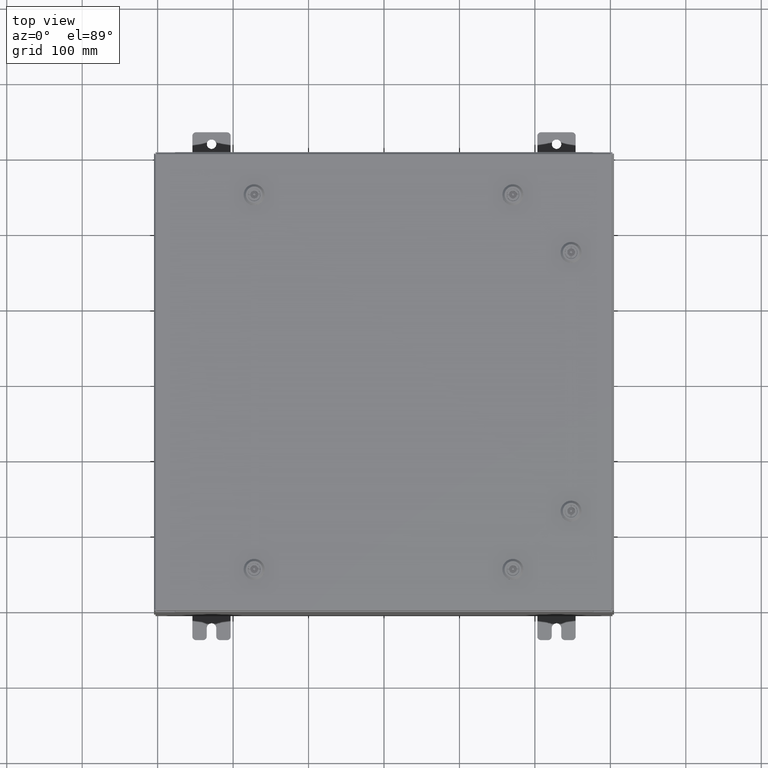
[diagram: clean part render]
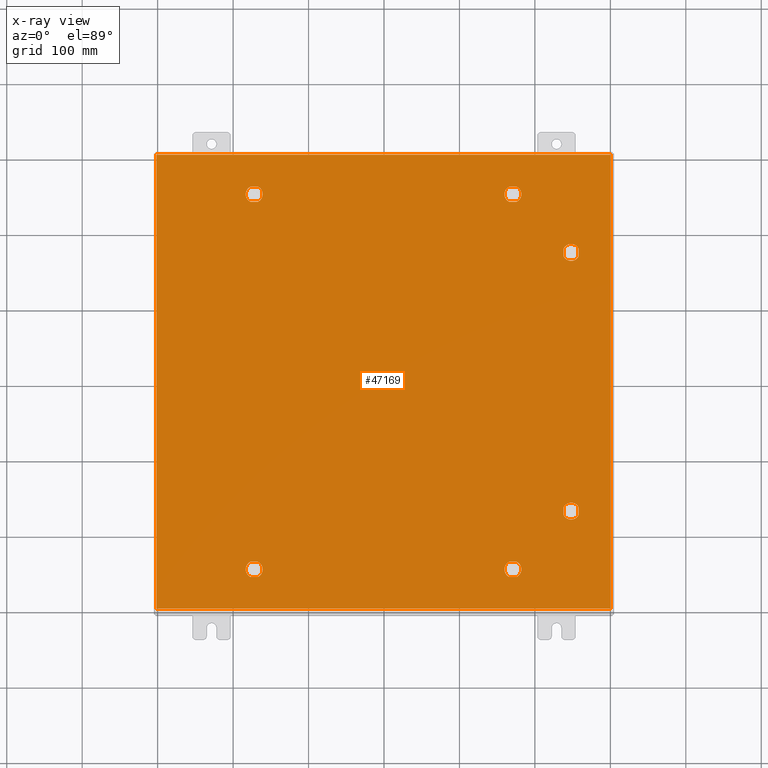
[diagram: x-ray — body ghosted, one internal face saturated and labeled with its STEP entity id]
A machine part, top view, then the same camera in x-ray: the body is ghosted and one INTERNAL B-rep face — a face not visible from any outside direction — is saturated and labeled: STEP entity #47169.
In plain terms, the highlighted planar face has unit normal (0, 0, -1).
Its self-contained STEP definition (entity closure, byte-faithful):
#73 = EDGE_CURVE ( 'NONE', #8258, #60451, #23996, .T. ) ;
#235 = DIRECTION ( 'NONE',  ( -1.000000000000000000, 0.0000000000000000000, -0.0000000000000000000 ) ) ;
#331 = VERTEX_POINT ( 'NONE', #50920 ) ;
#404 = CARTESIAN_POINT ( 'NONE',  ( -6.749999999999984900, -9.787799999999993600, -0.07470000000000003000 ) ) ;
#431 = DIRECTION ( 'NONE',  ( -0.0000000000000000000, -0.0000000000000000000, 1.000000000000000000 ) ) ;
#490 = DIRECTION ( 'NONE',  ( -0.0000000000000000000, -0.0000000000000000000, 1.000000000000000000 ) ) ;
#496 = DIRECTION ( 'NONE',  ( -0.0000000000000000000, -0.0000000000000000000, 1.000000000000000000 ) ) ;
#915 = CARTESIAN_POINT ( 'NONE',  ( 9.787800000000007800, -6.750000000000015100, -0.07470000000000003000 ) ) ;
#1107 = AXIS2_PLACEMENT_3D ( 'NONE', #55015, #25635, #59926 ) ;
#1223 = CARTESIAN_POINT ( 'NONE',  ( -11.84980000000000000, 11.84980000000000000, -0.07470000000000129300 ) ) ;
#1527 = LINE ( 'NONE', #8495, #49056 ) ;
#2327 = CIRCLE ( 'NONE', #60938, 0.4424999999999983400 ) ;
#2421 = AXIS2_PLACEMENT_3D ( 'NONE', #14886, #49198, #19850 ) ;
#2440 = DIRECTION ( 'NONE',  ( -0.0000000000000000000, -0.0000000000000000000, 1.000000000000000000 ) ) ;
#2488 = CARTESIAN_POINT ( 'NONE',  ( 11.84980000000000000, -11.84980000000000000, -0.07470000000000019700 ) ) ;
#2742 = DIRECTION ( 'NONE',  ( -1.000000000000000000, -2.469467112916857400E-015, 0.0000000000000000000 ) ) ;
#2827 = DIRECTION ( 'NONE',  ( -0.0000000000000000000, -0.0000000000000000000, 1.000000000000000000 ) ) ;
#3197 = EDGE_CURVE ( 'NONE', #12007, #8258, #53082, .T. ) ;
#3439 = ORIENTED_EDGE ( 'NONE', *, *, #54023, .T. ) ;
#3995 = AXIS2_PLACEMENT_3D ( 'NONE', #29876, #490, #34780 ) ;
#4157 = EDGE_LOOP ( 'NONE', ( #45603, #44064, #52142, #62874, #54500 ) ) ;
#4209 = CARTESIAN_POINT ( 'NONE',  ( 9.392800000000015400, 6.949452375267905600, -0.07470000000000003000 ) ) ;
#4681 = AXIS2_PLACEMENT_3D ( 'NONE', #31814, #2440, #36718 ) ;
#5023 = AXIS2_PLACEMENT_3D ( 'NONE', #43326, #13947, #48253 ) ;
#5266 = EDGE_CURVE ( 'NONE', #44303, #12361, #2327, .T. ) ;
#5337 = DIRECTION ( 'NONE',  ( -1.000000000000000000, 2.469467112916857400E-015, 0.0000000000000000000 ) ) ;
#5833 = DIRECTION ( 'NONE',  ( -1.000000000000000000, 0.0000000000000000000, 0.0000000000000000000 ) ) ;
#5905 = ORIENTED_EDGE ( 'NONE', *, *, #19765, .T. ) ;
#5947 = EDGE_CURVE ( 'NONE', #57953, #27558, #36036, .T. ) ;
#6494 = DIRECTION ( 'NONE',  ( -1.000000000000000000, -2.739348669069625400E-015, 0.0000000000000000000 ) ) ;
#6537 = CARTESIAN_POINT ( 'NONE',  ( -6.949452375267869200, 9.392799999999995800, -0.07470000000000003000 ) ) ;
#6552 = CIRCLE ( 'NONE', #38175, 0.4424999999999972800 ) ;
#6900 = ORIENTED_EDGE ( 'NONE', *, *, #5266, .T. ) ;
#6933 = CARTESIAN_POINT ( 'NONE',  ( -11.84979999999999500, -11.84980000000000000, -0.07470000000000000300 ) ) ;
#6953 = AXIS2_PLACEMENT_3D ( 'NONE', #915, #35203, #5833 ) ;
#6964 = LINE ( 'NONE', #48313, #44563 ) ;
#7021 = DIRECTION ( 'NONE',  ( -1.000000000000000000, 2.739348669069610000E-015, 0.0000000000000000000 ) ) ;
#7412 = CARTESIAN_POINT ( 'NONE',  ( -6.749999999999984900, -9.787799999999993600, -0.07470000000000003000 ) ) ;
#7886 = VERTEX_POINT ( 'NONE', #44357 ) ;
#7951 = EDGE_CURVE ( 'NONE', #62416, #53925, #31308, .T. ) ;
#8003 = VERTEX_POINT ( 'NONE', #39225 ) ;
#8050 = CIRCLE ( 'NONE', #58455, 0.4424999999999972800 ) ;
#8258 = VERTEX_POINT ( 'NONE', #15828 ) ;
#8495 = CARTESIAN_POINT ( 'NONE',  ( -11.84979999999999500, -11.84980000000000000, -0.07470000000000019700 ) ) ;
#8703 = FACE_BOUND ( 'NONE', #43476, .T. ) ;
#8920 = ORIENTED_EDGE ( 'NONE', *, *, #32089, .T. ) ;
#9126 = DIRECTION ( 'NONE',  ( -8.218046007208762600E-015, -1.000000000000000000, 0.0000000000000000000 ) ) ;
#9312 = DIRECTION ( 'NONE',  ( 1.095739467627835200E-014, -1.000000000000000000, 0.0000000000000000000 ) ) ;
#9453 = AXIS2_PLACEMENT_3D ( 'NONE', #29819, #431, #34729 ) ;
#9504 = CARTESIAN_POINT ( 'NONE',  ( -6.949452375267865600, 10.18279999999999000, -0.07470000000000003000 ) ) ;
#10007 = LINE ( 'NONE', #19998, #37610 ) ;
#10033 = CARTESIAN_POINT ( 'NONE',  ( -6.550547624732099700, 9.392799999999995800, -0.07470000000000003000 ) ) ;
#10446 = CARTESIAN_POINT ( 'NONE',  ( 6.550547624732091700, -10.18279999999998400, -0.07470000000000003000 ) ) ;
#11271 = CARTESIAN_POINT ( 'NONE',  ( 6.949452375267864700, 10.18279999999999000, -0.07470000000000003000 ) ) ;
#11900 = VECTOR ( 'NONE', #12828, 39.37007874015748100 ) ;
#12007 = VERTEX_POINT ( 'NONE', #40836 ) ;
#12136 = CARTESIAN_POINT ( 'NONE',  ( -6.949452375267865600, -10.18279999999999100, -0.07470000000000003000 ) ) ;
#12337 = DIRECTION ( 'NONE',  ( -1.000000000000000000, 0.0000000000000000000, 0.0000000000000000000 ) ) ;
#12361 = VERTEX_POINT ( 'NONE', #34216 ) ;
#12828 = DIRECTION ( 'NONE',  ( -5.478697338139235800E-015, 1.000000000000000000, 0.0000000000000000000 ) ) ;
#12898 = VECTOR ( 'NONE', #29563, 39.37007874015748100 ) ;
#13011 = CARTESIAN_POINT ( 'NONE',  ( 10.18280000000000700, -6.550547624732132600, -0.07470000000000003000 ) ) ;
#13170 = CARTESIAN_POINT ( 'NONE',  ( 9.392800000000011800, 6.550547624732132600, -0.07470000000000003000 ) ) ;
#13467 = CARTESIAN_POINT ( 'NONE',  ( 6.949452375267867400, 9.392799999999995800, -0.07470000000000003000 ) ) ;
#13862 = VECTOR ( 'NONE', #44843, 39.37007874015748100 ) ;
#13947 = DIRECTION ( 'NONE',  ( -0.0000000000000000000, -0.0000000000000000000, 1.000000000000000000 ) ) ;
#14422 = DIRECTION ( 'NONE',  ( -0.0000000000000000000, -0.0000000000000000000, 1.000000000000000000 ) ) ;
#14796 = VERTEX_POINT ( 'NONE', #59349 ) ;
#14886 = CARTESIAN_POINT ( 'NONE',  ( -6.749999999999984900, 9.787799999999991800, -0.07470000000000003000 ) ) ;
#15490 = EDGE_CURVE ( 'NONE', #26814, #44303, #10007, .T. ) ;
#15540 = CARTESIAN_POINT ( 'NONE',  ( 6.550547624732099700, -9.392799999999997600, -0.07470000000000000300 ) ) ;
#15626 = ORIENTED_EDGE ( 'NONE', *, *, #3197, .F. ) ;
#15828 = CARTESIAN_POINT ( 'NONE',  ( -11.84979999999999800, 11.84980000000000000, -0.07470000000000000300 ) ) ;
#16407 = CARTESIAN_POINT ( 'NONE',  ( 6.749999999999983100, 9.787799999999993600, -0.07470000000000003000 ) ) ;
#16667 = ORIENTED_EDGE ( 'NONE', *, *, #59861, .T. ) ;
#16919 = CARTESIAN_POINT ( 'NONE',  ( 11.84980000000000200, 11.84980000000000000, -0.07469999999999910000 ) ) ;
#16934 = CIRCLE ( 'NONE', #1107, 0.4424999999999972800 ) ;
#17087 = ORIENTED_EDGE ( 'NONE', *, *, #54115, .T. ) ;
#17174 = VECTOR ( 'NONE', #6494, 39.37007874015748100 ) ;
#17442 = EDGE_CURVE ( 'NONE', #19958, #58185, #63579, .T. ) ;
#17524 = CARTESIAN_POINT ( 'NONE',  ( -6.550547624732099700, -9.392799999999999400, -0.07470000000000003000 ) ) ;
#17603 = ORIENTED_EDGE ( 'NONE', *, *, #62453, .T. ) ;
#18252 = CIRCLE ( 'NONE', #21702, 0.4424999999999983400 ) ;
#18267 = EDGE_LOOP ( 'NONE', ( #42672, #61710, #49824, #16667, #37463 ) ) ;
#18411 = ORIENTED_EDGE ( 'NONE', *, *, #23059, .T. ) ;
#18666 = CARTESIAN_POINT ( 'NONE',  ( 10.18280000000000600, -6.949452375267901200, -0.07470000000000003000 ) ) ;
#19765 = EDGE_CURVE ( 'NONE', #48237, #59594, #27503, .T. ) ;
#19850 = DIRECTION ( 'NONE',  ( -1.000000000000000000, 2.469467112916857400E-015, 0.0000000000000000000 ) ) ;
#19902 = DIRECTION ( 'NONE',  ( -1.000000000000000000, -0.0000000000000000000, -0.0000000000000000000 ) ) ;
#19908 = CARTESIAN_POINT ( 'NONE',  ( -6.307499999999987700, -9.787799999999993600, -0.07470000000000003000 ) ) ;
#19958 = VERTEX_POINT ( 'NONE', #11271 ) ;
#19998 = CARTESIAN_POINT ( 'NONE',  ( 10.18280000000000600, -6.949452375267901200, -0.07470000000000003000 ) ) ;
#20744 = EDGE_LOOP ( 'NONE', ( #6900, #30906, #17087, #54940 ) ) ;
#20788 = CIRCLE ( 'NONE', #3995, 0.4424999999999972800 ) ;
#20843 = CARTESIAN_POINT ( 'NONE',  ( -6.749999999999984900, -9.787799999999993600, -0.07470000000000003000 ) ) ;
#21072 = CARTESIAN_POINT ( 'NONE',  ( -6.307499999999987700, 9.787799999999991800, -0.07470000000000003000 ) ) ;
#21082 = VECTOR ( 'NONE', #51557, 39.37007874015748100 ) ;
#21209 = CARTESIAN_POINT ( 'NONE',  ( 6.550547624732099700, 9.392799999999997600, -0.07470000000000003000 ) ) ;
#21326 = DIRECTION ( 'NONE',  ( -1.000000000000000000, 0.0000000000000000000, 0.0000000000000000000 ) ) ;
#21409 = VECTOR ( 'NONE', #25750, 39.37007874015748100 ) ;
#21687 = FACE_BOUND ( 'NONE', #18267, .T. ) ;
#21702 = AXIS2_PLACEMENT_3D ( 'NONE', #404, #34707, #5337 ) ;
#22220 = AXIS2_PLACEMENT_3D ( 'NONE', #16407, #50718, #21326 ) ;
#22645 = ORIENTED_EDGE ( 'NONE', *, *, #28743, .T. ) ;
#23059 = EDGE_CURVE ( 'NONE', #52282, #14796, #6552, .T. ) ;
#23225 = VERTEX_POINT ( 'NONE', #15540 ) ;
#23324 = VERTEX_POINT ( 'NONE', #21072 ) ;
#23613 = EDGE_CURVE ( 'NONE', #59594, #23324, #34231, .T. ) ;
#23693 = ORIENTED_EDGE ( 'NONE', *, *, #34537, .T. ) ;
#23884 = VECTOR ( 'NONE', #28817, 39.37007874015748100 ) ;
#23968 = VERTEX_POINT ( 'NONE', #60119 ) ;
#23996 = LINE ( 'NONE', #1223, #61587 ) ;
#24120 = DIRECTION ( 'NONE',  ( -0.0000000000000000000, -0.0000000000000000000, 1.000000000000000000 ) ) ;
#24440 = CIRCLE ( 'NONE', #2421, 0.4424999999999983400 ) ;
#24567 = DIRECTION ( 'NONE',  ( -0.0000000000000000000, -0.0000000000000000000, 1.000000000000000000 ) ) ;
#24630 = EDGE_CURVE ( 'NONE', #7886, #12007, #47198, .T. ) ;
#24646 = CARTESIAN_POINT ( 'NONE',  ( 0.0000000000000000000, 0.0000000000000000000, -0.07470000000000000300 ) ) ;
#24682 = CIRCLE ( 'NONE', #6953, 0.4424999999999972800 ) ;
#24801 = FACE_BOUND ( 'NONE', #4157, .T. ) ;
#24805 = VECTOR ( 'NONE', #44722, 39.37007874015748100 ) ;
#25347 = VERTEX_POINT ( 'NONE', #42034 ) ;
#25635 = DIRECTION ( 'NONE',  ( -0.0000000000000000000, -0.0000000000000000000, 1.000000000000000000 ) ) ;
#25750 = DIRECTION ( 'NONE',  ( 1.000000000000000000, 1.643609201441752500E-014, 0.0000000000000000000 ) ) ;
#25785 = DIRECTION ( 'NONE',  ( -1.000000000000000000, 2.469467112916863300E-015, 0.0000000000000000000 ) ) ;
#25888 = VERTEX_POINT ( 'NONE', #56332 ) ;
#26027 = VERTEX_POINT ( 'NONE', #13170 ) ;
#26806 = EDGE_CURVE ( 'NONE', #50202, #331, #57911, .T. ) ;
#26814 = VERTEX_POINT ( 'NONE', #18666 ) ;
#27503 = LINE ( 'NONE', #10033, #12898 ) ;
#27558 = VERTEX_POINT ( 'NONE', #56527 ) ;
#27650 = DIRECTION ( 'NONE',  ( 0.0000000000000000000, -1.000000000000000000, 0.0000000000000000000 ) ) ;
#27920 = LINE ( 'NONE', #10446, #24805 ) ;
#27977 = ORIENTED_EDGE ( 'NONE', *, *, #28041, .T. ) ;
#28011 = CARTESIAN_POINT ( 'NONE',  ( 6.550547624732091700, 10.18279999999998400, -0.07470000000000000300 ) ) ;
#28041 = EDGE_CURVE ( 'NONE', #56062, #23225, #30262, .T. ) ;
#28143 = AXIS2_PLACEMENT_3D ( 'NONE', #7412, #41685, #12337 ) ;
#28590 = CARTESIAN_POINT ( 'NONE',  ( -6.550547624732099700, 9.392799999999995800, -0.07470000000000000300 ) ) ;
#28743 = EDGE_CURVE ( 'NONE', #8003, #35982, #27920, .T. ) ;
#28817 = DIRECTION ( 'NONE',  ( -1.000000000000000000, 1.643609201441752500E-014, 0.0000000000000000000 ) ) ;
#29486 = EDGE_LOOP ( 'NONE', ( #3439, #17603, #18411, #41210 ) ) ;
#29563 = DIRECTION ( 'NONE',  ( 1.000000000000000000, 2.739348669069610000E-015, 0.0000000000000000000 ) ) ;
#29819 = CARTESIAN_POINT ( 'NONE',  ( -6.749999999999984900, 9.787799999999991800, -0.07470000000000003000 ) ) ;
#29876 = CARTESIAN_POINT ( 'NONE',  ( 6.749999999999983100, 9.787799999999993600, -0.07470000000000003000 ) ) ;
#29882 = CARTESIAN_POINT ( 'NONE',  ( 9.787800000000007800, 6.750000000000015100, -0.07470000000000003000 ) ) ;
#30262 = LINE ( 'NONE', #35878, #17174 ) ;
#30488 = EDGE_CURVE ( 'NONE', #27558, #35829, #45430, .T. ) ;
#30906 = ORIENTED_EDGE ( 'NONE', *, *, #55324, .T. ) ;
#31197 = AXIS2_PLACEMENT_3D ( 'NONE', #43789, #14422, #48714 ) ;
#31308 = LINE ( 'NONE', #32349, #45856 ) ;
#31814 = CARTESIAN_POINT ( 'NONE',  ( 6.749999999999983100, -9.787799999999993600, -0.07470000000000003000 ) ) ;
#32089 = EDGE_CURVE ( 'NONE', #23324, #23968, #16934, .T. ) ;
#32209 = ORIENTED_EDGE ( 'NONE', *, *, #53873, .T. ) ;
#32349 = CARTESIAN_POINT ( 'NONE',  ( -6.550547624732099700, -9.392799999999997600, -0.07470000000000003000 ) ) ;
#32973 = DIRECTION ( 'NONE',  ( 1.000000000000000000, -0.0000000000000000000, -0.0000000000000000000 ) ) ;
#33704 = EDGE_CURVE ( 'NONE', #60451, #7886, #1527, .T. ) ;
#34216 = CARTESIAN_POINT ( 'NONE',  ( 9.392800000000011800, -6.550547624732132600, -0.07470000000000003000 ) ) ;
#34231 = CIRCLE ( 'NONE', #9453, 0.4424999999999972800 ) ;
#34370 = ORIENTED_EDGE ( 'NONE', *, *, #47930, .T. ) ;
#34394 = CARTESIAN_POINT ( 'NONE',  ( -6.550547624732093500, -10.18279999999998400, -0.07470000000000003000 ) ) ;
#34537 = EDGE_CURVE ( 'NONE', #45215, #48237, #24440, .T. ) ;
#34707 = DIRECTION ( 'NONE',  ( -0.0000000000000000000, -0.0000000000000000000, 1.000000000000000000 ) ) ;
#34729 = DIRECTION ( 'NONE',  ( -1.000000000000000000, 2.469467112916863300E-015, 0.0000000000000000000 ) ) ;
#34780 = DIRECTION ( 'NONE',  ( -1.000000000000000000, -2.469467112916863300E-015, 0.0000000000000000000 ) ) ;
#34785 = DIRECTION ( 'NONE',  ( -1.000000000000000000, 0.0000000000000000000, 0.0000000000000000000 ) ) ;
#34796 = FACE_BOUND ( 'NONE', #20744, .T. ) ;
#35203 = DIRECTION ( 'NONE',  ( -0.0000000000000000000, -0.0000000000000000000, 1.000000000000000000 ) ) ;
#35345 = VERTEX_POINT ( 'NONE', #21209 ) ;
#35537 = CARTESIAN_POINT ( 'NONE',  ( 6.949452375267864700, -10.18279999999999000, -0.07470000000000003000 ) ) ;
#35787 = EDGE_CURVE ( 'NONE', #53925, #57953, #18252, .T. ) ;
#35829 = VERTEX_POINT ( 'NONE', #19908 ) ;
#35878 = CARTESIAN_POINT ( 'NONE',  ( 6.550547624732099700, -9.392799999999997600, -0.07470000000000003000 ) ) ;
#35982 = VERTEX_POINT ( 'NONE', #35537 ) ;
#36036 = LINE ( 'NONE', #34394, #21409 ) ;
#36346 = AXIS2_PLACEMENT_3D ( 'NONE', #53940, #24567, #58849 ) ;
#36718 = DIRECTION ( 'NONE',  ( -1.000000000000000000, -2.469467112916863300E-015, 0.0000000000000000000 ) ) ;
#36924 = LINE ( 'NONE', #43375, #23884 ) ;
#37463 = ORIENTED_EDGE ( 'NONE', *, *, #55547, .T. ) ;
#37610 = VECTOR ( 'NONE', #59202, 39.37007874015748100 ) ;
#37993 = LINE ( 'NONE', #47120, #11900 ) ;
#38122 = EDGE_CURVE ( 'NONE', #14796, #26027, #45231, .T. ) ;
#38175 = AXIS2_PLACEMENT_3D ( 'NONE', #53506, #24120, #58414 ) ;
#38818 = DIRECTION ( 'NONE',  ( 0.0000000000000000000, 0.0000000000000000000, -1.000000000000000000 ) ) ;
#38941 = ORIENTED_EDGE ( 'NONE', *, *, #24630, .F. ) ;
#39225 = CARTESIAN_POINT ( 'NONE',  ( 6.550547624732091700, -10.18279999999998400, -0.07470000000000003000 ) ) ;
#39276 = CIRCLE ( 'NONE', #47632, 0.4424999999999972800 ) ;
#39336 = CIRCLE ( 'NONE', #36346, 0.4424999999999972800 ) ;
#40836 = CARTESIAN_POINT ( 'NONE',  ( 11.84980000000000000, 11.84980000000000000, -0.07470000000000000300 ) ) ;
#41210 = ORIENTED_EDGE ( 'NONE', *, *, #38122, .T. ) ;
#41271 = ORIENTED_EDGE ( 'NONE', *, *, #23613, .T. ) ;
#41685 = DIRECTION ( 'NONE',  ( -0.0000000000000000000, -0.0000000000000000000, 1.000000000000000000 ) ) ;
#42034 = CARTESIAN_POINT ( 'NONE',  ( 7.192499999999980400, -9.787799999999993600, -0.07470000000000003000 ) ) ;
#42447 = CARTESIAN_POINT ( 'NONE',  ( 10.18280000000000600, 6.550547624732132600, -0.07470000000000003000 ) ) ;
#42672 = ORIENTED_EDGE ( 'NONE', *, *, #26806, .T. ) ;
#43326 = CARTESIAN_POINT ( 'NONE',  ( 6.749999999999983100, 9.787799999999993600, -0.07470000000000003000 ) ) ;
#43375 = CARTESIAN_POINT ( 'NONE',  ( -6.550547624732093500, 10.18279999999998300, -0.07470000000000003000 ) ) ;
#43476 = EDGE_LOOP ( 'NONE', ( #23693, #5905, #41271, #8920, #47727 ) ) ;
#43683 = VECTOR ( 'NONE', #9126, 39.37007874015748100 ) ;
#43789 = CARTESIAN_POINT ( 'NONE',  ( 6.749999999999983100, -9.787799999999993600, -0.07470000000000003000 ) ) ;
#43873 = CIRCLE ( 'NONE', #31197, 0.4424999999999972800 ) ;
#44064 = ORIENTED_EDGE ( 'NONE', *, *, #5947, .T. ) ;
#44303 = VERTEX_POINT ( 'NONE', #13011 ) ;
#44357 = CARTESIAN_POINT ( 'NONE',  ( 11.84980000000000000, -11.84980000000000000, -0.07470000000000000300 ) ) ;
#44563 = VECTOR ( 'NONE', #9312, 39.37007874015748100 ) ;
#44722 = DIRECTION ( 'NONE',  ( 1.000000000000000000, -1.095739467627835200E-014, 0.0000000000000000000 ) ) ;
#44772 = CARTESIAN_POINT ( 'NONE',  ( 6.550547624732091700, 10.18279999999998400, -0.07470000000000003000 ) ) ;
#44843 = DIRECTION ( 'NONE',  ( 1.000000000000000000, -2.739348669069625400E-015, 0.0000000000000000000 ) ) ;
#44981 = DIRECTION ( 'NONE',  ( -1.000000000000000000, -1.095739467627835200E-014, 0.0000000000000000000 ) ) ;
#45215 = VERTEX_POINT ( 'NONE', #9504 ) ;
#45231 = LINE ( 'NONE', #4209, #43683 ) ;
#45430 = CIRCLE ( 'NONE', #28143, 0.4424999999999972800 ) ;
#45603 = ORIENTED_EDGE ( 'NONE', *, *, #35787, .T. ) ;
#45611 = CIRCLE ( 'NONE', #4681, 0.4424999999999972800 ) ;
#45825 = EDGE_LOOP ( 'NONE', ( #38941, #59664, #47392, #15626 ) ) ;
#45856 = VECTOR ( 'NONE', #7021, 39.37007874015748100 ) ;
#46677 = CARTESIAN_POINT ( 'NONE',  ( 9.787800000000007800, -6.750000000000015100, -0.07470000000000003000 ) ) ;
#46768 = VERTEX_POINT ( 'NONE', #42447 ) ;
#47033 = CARTESIAN_POINT ( 'NONE',  ( 10.18280000000000200, 6.949452375267901200, -0.07470000000000000300 ) ) ;
#47120 = CARTESIAN_POINT ( 'NONE',  ( 10.18280000000000200, 6.949452375267901200, -0.07470000000000003000 ) ) ;
#47169 = ADVANCED_FACE ( 'NONE', ( #34796, #47831, #60845, #24801, #21687, #8703, #59300 ), #54018, .T. ) ;
#47198 = LINE ( 'NONE', #2488, #21082 ) ;
#47392 = ORIENTED_EDGE ( 'NONE', *, *, #73, .F. ) ;
#47632 = AXIS2_PLACEMENT_3D ( 'NONE', #29882, #496, #34785 ) ;
#47727 = ORIENTED_EDGE ( 'NONE', *, *, #49591, .T. ) ;
#47831 = FACE_BOUND ( 'NONE', #29486, .T. ) ;
#47930 = EDGE_CURVE ( 'NONE', #35982, #25347, #39336, .T. ) ;
#48143 = CIRCLE ( 'NONE', #22220, 0.4424999999999972800 ) ;
#48237 = VERTEX_POINT ( 'NONE', #6537 ) ;
#48253 = DIRECTION ( 'NONE',  ( -1.000000000000000000, 2.469467112916863300E-015, 0.0000000000000000000 ) ) ;
#48313 = CARTESIAN_POINT ( 'NONE',  ( 9.392800000000017100, -6.949452375267905600, -0.07470000000000003000 ) ) ;
#48661 = AXIS2_PLACEMENT_3D ( 'NONE', #24646, #38818, #235 ) ;
#48714 = DIRECTION ( 'NONE',  ( -1.000000000000000000, 0.0000000000000000000, 0.0000000000000000000 ) ) ;
#49056 = VECTOR ( 'NONE', #32973, 39.37007874015748100 ) ;
#49198 = DIRECTION ( 'NONE',  ( -0.0000000000000000000, -0.0000000000000000000, 1.000000000000000000 ) ) ;
#49591 = EDGE_CURVE ( 'NONE', #23968, #45215, #36924, .T. ) ;
#49722 = EDGE_CURVE ( 'NONE', #331, #19958, #20788, .T. ) ;
#49824 = ORIENTED_EDGE ( 'NONE', *, *, #17442, .T. ) ;
#50202 = VERTEX_POINT ( 'NONE', #13467 ) ;
#50718 = DIRECTION ( 'NONE',  ( -0.0000000000000000000, -0.0000000000000000000, 1.000000000000000000 ) ) ;
#50920 = CARTESIAN_POINT ( 'NONE',  ( 7.192499999999980400, 9.787799999999993600, -0.07470000000000003000 ) ) ;
#51452 = LINE ( 'NONE', #54704, #13862 ) ;
#51515 = VECTOR ( 'NONE', #19902, 39.37007874015748100 ) ;
#51557 = DIRECTION ( 'NONE',  ( 0.0000000000000000000, 1.000000000000000000, 0.0000000000000000000 ) ) ;
#52084 = VECTOR ( 'NONE', #44981, 39.37007874015748100 ) ;
#52142 = ORIENTED_EDGE ( 'NONE', *, *, #30488, .T. ) ;
#52282 = VERTEX_POINT ( 'NONE', #47033 ) ;
#53082 = LINE ( 'NONE', #16919, #51515 ) ;
#53506 = CARTESIAN_POINT ( 'NONE',  ( 9.787800000000007800, 6.750000000000015100, -0.07470000000000003000 ) ) ;
#53656 = CARTESIAN_POINT ( 'NONE',  ( -6.949452375267869200, -9.392799999999997600, -0.07470000000000003000 ) ) ;
#53873 = EDGE_CURVE ( 'NONE', #23225, #8003, #43873, .T. ) ;
#53925 = VERTEX_POINT ( 'NONE', #53656 ) ;
#53940 = CARTESIAN_POINT ( 'NONE',  ( 6.749999999999983100, -9.787799999999993600, -0.07470000000000003000 ) ) ;
#54018 = PLANE ( 'NONE',  #48661 ) ;
#54023 = EDGE_CURVE ( 'NONE', #26027, #46768, #39276, .T. ) ;
#54115 = EDGE_CURVE ( 'NONE', #25888, #26814, #24682, .T. ) ;
#54500 = ORIENTED_EDGE ( 'NONE', *, *, #7951, .T. ) ;
#54704 = CARTESIAN_POINT ( 'NONE',  ( 6.550547624732099700, 9.392799999999997600, -0.07470000000000003000 ) ) ;
#54940 = ORIENTED_EDGE ( 'NONE', *, *, #15490, .T. ) ;
#55015 = CARTESIAN_POINT ( 'NONE',  ( -6.749999999999984900, 9.787799999999991800, -0.07470000000000003000 ) ) ;
#55168 = DIRECTION ( 'NONE',  ( -0.0000000000000000000, -0.0000000000000000000, 1.000000000000000000 ) ) ;
#55324 = EDGE_CURVE ( 'NONE', #12361, #25888, #6964, .T. ) ;
#55547 = EDGE_CURVE ( 'NONE', #35345, #50202, #51452, .T. ) ;
#56062 = VERTEX_POINT ( 'NONE', #56932 ) ;
#56332 = CARTESIAN_POINT ( 'NONE',  ( 9.392800000000017100, -6.949452375267905600, -0.07470000000000000300 ) ) ;
#56347 = ORIENTED_EDGE ( 'NONE', *, *, #63105, .T. ) ;
#56527 = CARTESIAN_POINT ( 'NONE',  ( -6.550547624732093500, -10.18279999999998400, -0.07470000000000000300 ) ) ;
#56932 = CARTESIAN_POINT ( 'NONE',  ( 6.949452375267867400, -9.392799999999995800, -0.07470000000000003000 ) ) ;
#57911 = CIRCLE ( 'NONE', #5023, 0.4424999999999972800 ) ;
#57953 = VERTEX_POINT ( 'NONE', #12136 ) ;
#58185 = VERTEX_POINT ( 'NONE', #28011 ) ;
#58414 = DIRECTION ( 'NONE',  ( -1.000000000000000000, 0.0000000000000000000, 0.0000000000000000000 ) ) ;
#58455 = AXIS2_PLACEMENT_3D ( 'NONE', #20843, #55168, #25785 ) ;
#58849 = DIRECTION ( 'NONE',  ( -1.000000000000000000, 2.469467112916863300E-015, 0.0000000000000000000 ) ) ;
#59202 = DIRECTION ( 'NONE',  ( 5.478697338139235800E-015, 1.000000000000000000, 0.0000000000000000000 ) ) ;
#59300 = FACE_OUTER_BOUND ( 'NONE', #45825, .T. ) ;
#59349 = CARTESIAN_POINT ( 'NONE',  ( 9.392800000000015400, 6.949452375267905600, -0.07470000000000003000 ) ) ;
#59594 = VERTEX_POINT ( 'NONE', #28590 ) ;
#59664 = ORIENTED_EDGE ( 'NONE', *, *, #33704, .F. ) ;
#59861 = EDGE_CURVE ( 'NONE', #58185, #35345, #48143, .T. ) ;
#59926 = DIRECTION ( 'NONE',  ( -1.000000000000000000, 0.0000000000000000000, 0.0000000000000000000 ) ) ;
#60119 = CARTESIAN_POINT ( 'NONE',  ( -6.550547624732093500, 10.18279999999998300, -0.07470000000000003000 ) ) ;
#60451 = VERTEX_POINT ( 'NONE', #6933 ) ;
#60845 = FACE_BOUND ( 'NONE', #61835, .T. ) ;
#60938 = AXIS2_PLACEMENT_3D ( 'NONE', #46677, #2827, #2742 ) ;
#61587 = VECTOR ( 'NONE', #27650, 39.37007874015748100 ) ;
#61710 = ORIENTED_EDGE ( 'NONE', *, *, #49722, .T. ) ;
#61835 = EDGE_LOOP ( 'NONE', ( #34370, #56347, #27977, #32209, #22645 ) ) ;
#62416 = VERTEX_POINT ( 'NONE', #17524 ) ;
#62453 = EDGE_CURVE ( 'NONE', #46768, #52282, #37993, .T. ) ;
#62874 = ORIENTED_EDGE ( 'NONE', *, *, #62963, .T. ) ;
#62963 = EDGE_CURVE ( 'NONE', #35829, #62416, #8050, .T. ) ;
#63105 = EDGE_CURVE ( 'NONE', #25347, #56062, #45611, .T. ) ;
#63579 = LINE ( 'NONE', #44772, #52084 ) ;